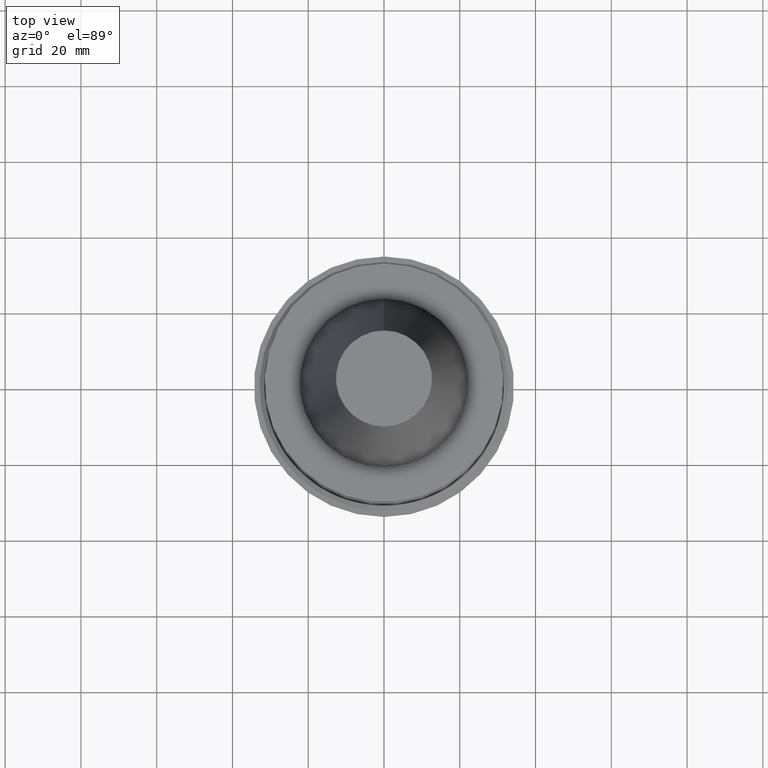
[diagram: clean part render]
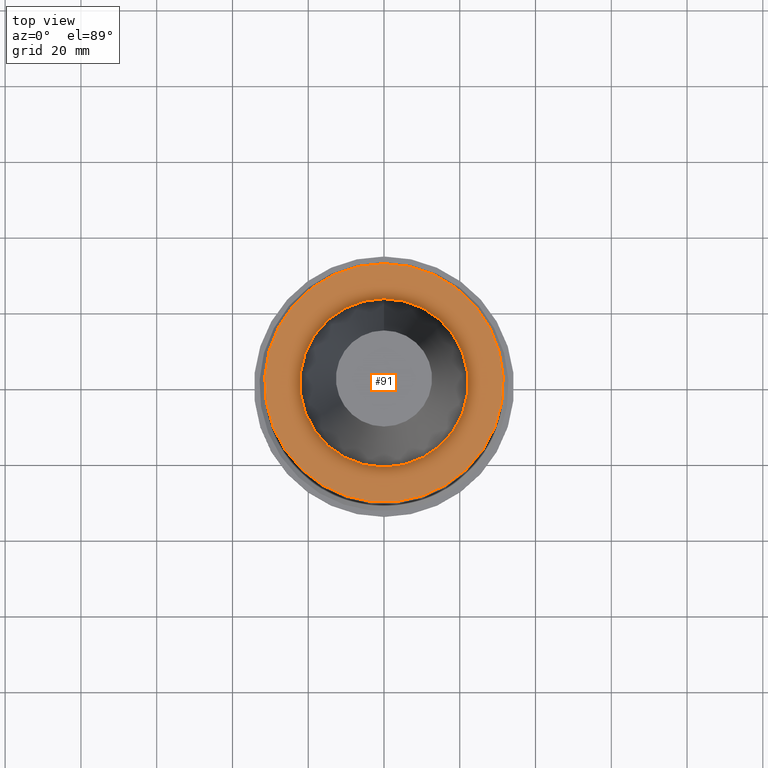
[diagram: same view with one face highlighted and labeled with its STEP entity id]
A machine part, top view. The second image highlights one B-rep face of the part: STEP entity #91.
In plain terms, the highlighted planar face has unit normal (-0, -0, 1).
Its self-contained STEP definition (entity closure, byte-faithful):
#85=EDGE_CURVE('Unnamed[1]',#221,#221,#222,.T.);
#91=ADVANCED_FACE('Unnamed[1]',(#230,#231),#232,.T.);
#93=EDGE_CURVE('Unnamed[1]',#234,#234,#235,.T.);
#221=VERTEX_POINT('',#407);
#222=CIRCLE('',#408,22.2250000000001);
#230=FACE_OUTER_BOUND('',#418,.T.);
#231=FACE_BOUND('',#419,.T.);
#232=PLANE('',#420);
#234=VERTEX_POINT('',#423);
#235=CIRCLE('',#424,31.4999999999997);
#407=CARTESIAN_POINT('',(6.12323399573622E-017,22.2250000000001,-0.999999999999912));
#408=AXIS2_PLACEMENT_3D('',#620,#621,#622);
#418=EDGE_LOOP('',(#630));
#419=EDGE_LOOP('',(#631));
#420=AXIS2_PLACEMENT_3D('',#632,#633,#634);
#423=CARTESIAN_POINT('',(6.12323399573568E-017,31.4999999999997,-0.999999999999825));
#424=AXIS2_PLACEMENT_3D('',#635,#636,#637);
#620=CARTESIAN_POINT('',(6.12323399573624E-017,1.22464679914725E-016,-0.999999999999915));
#621=DIRECTION('',(6.12323399573677E-017,1.22464679914758E-016,-1.0));
#622=DIRECTION('',(-1.23259516440775E-032,1.0,1.22464679914758E-016));
#630=ORIENTED_EDGE('',*,*,#93,.F.);
#631=ORIENTED_EDGE('',*,*,#85,.T.);
#632=CARTESIAN_POINT('',(6.12323399573595E-017,26.8624999999999,-0.999999999999869));
#633=DIRECTION('',(-6.12323399573677E-017,-9.35138060429241E-015,1.0));
#634=DIRECTION('',(5.77434068963536E-031,-1.0,-9.35138060429241E-015));
#635=CARTESIAN_POINT('',(6.12323399573572E-017,1.22464679914714E-016,-0.999999999999829));
#636=DIRECTION('',(6.12323399573677E-017,1.2246467991472E-016,-1.0));
#637=DIRECTION('',(-1.23259516440784E-032,1.0,1.2246467991472E-016));